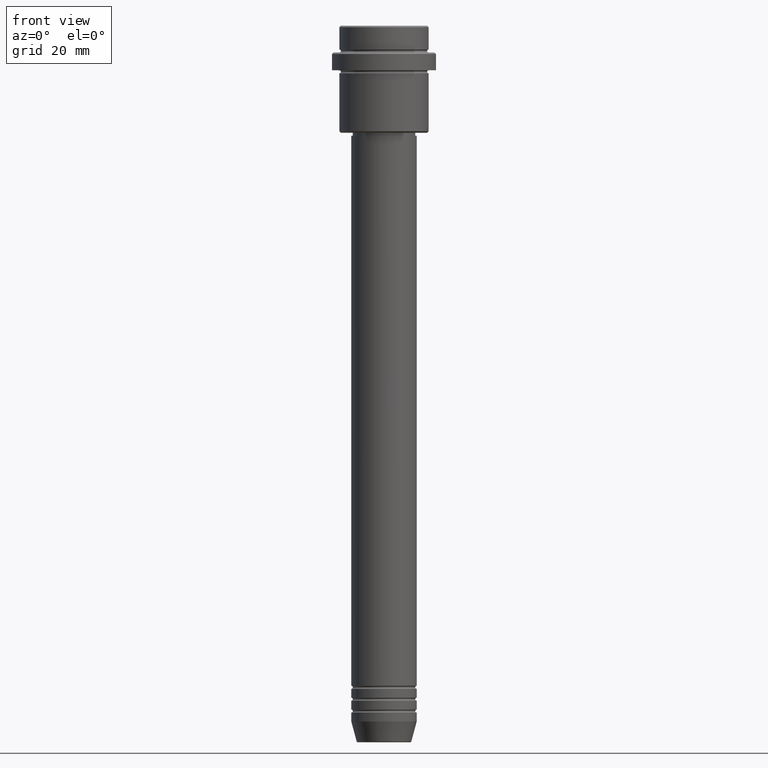
[diagram: clean part render]
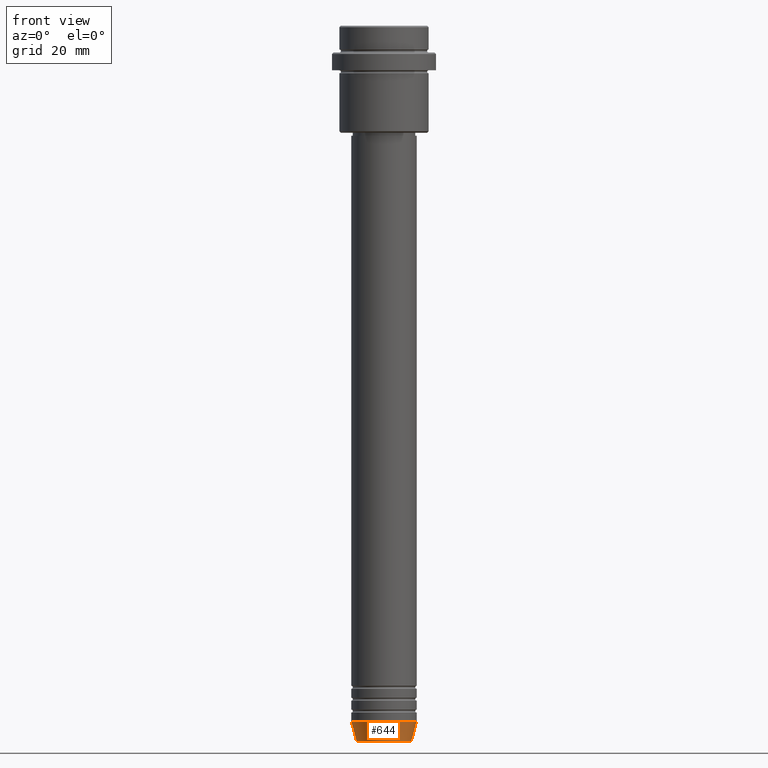
[diagram: same view with one face highlighted and labeled with its STEP entity id]
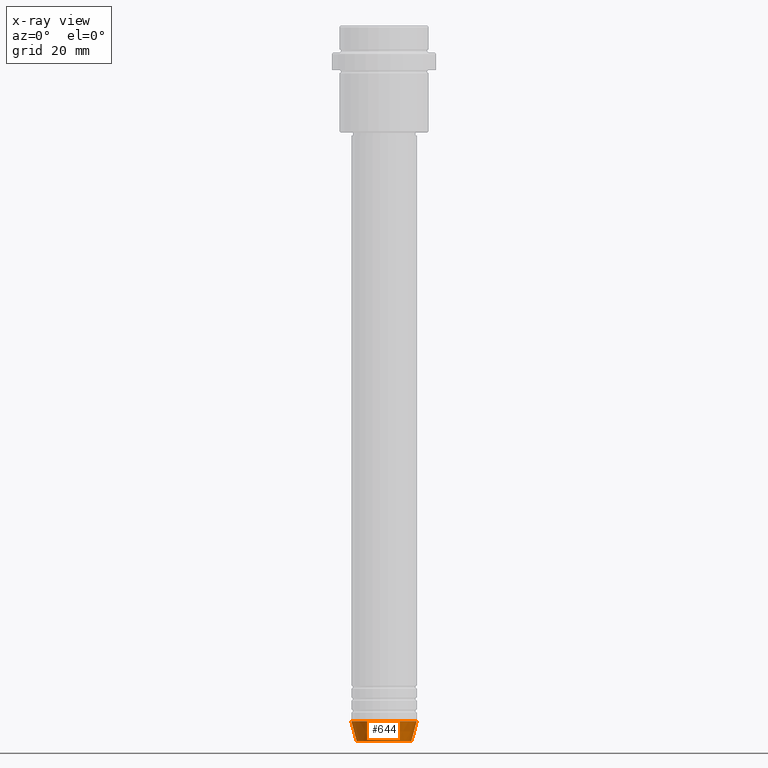
[diagram: x-ray of the same camera — body ghosted, the highlighted face saturated]
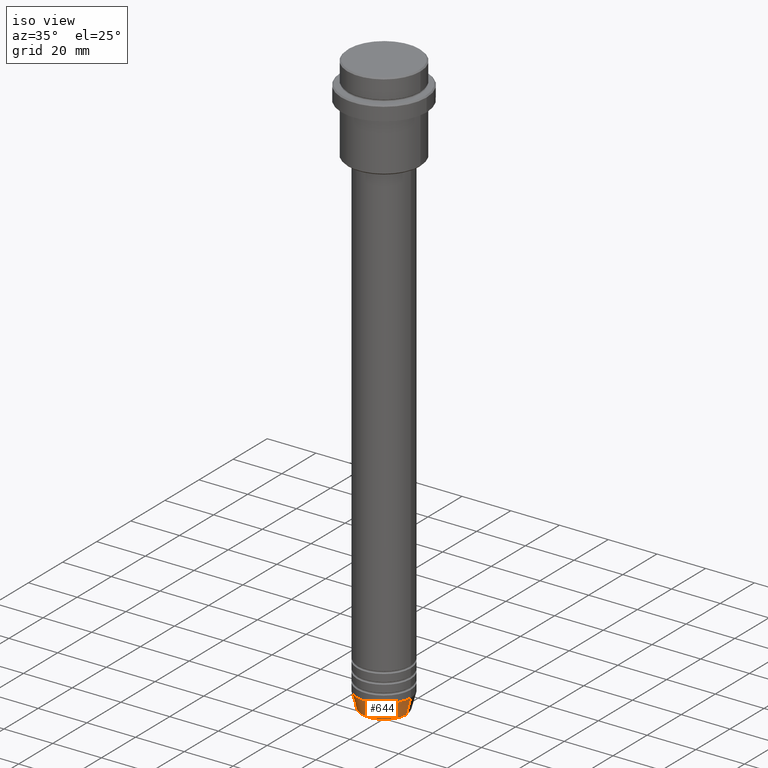
[diagram: same view with one face highlighted and labeled with its STEP entity id]
A machine part, front view. The second image highlights one B-rep face of the part: STEP entity #644.
The next image is the same camera in x-ray: the body ghosted, the highlighted face saturated — about 0% of this face is hidden behind the body in this view.
A second angle (iso view) of the same face is appended — the face is thin or edge-on in the first view.
In plain terms, the highlighted conical surface has half-angle 15 deg.
Its self-contained STEP definition (entity closure, byte-faithful):
#12 = CARTESIAN_POINT ( 'NONE',  ( -9.223655072137189492, 1.238341722557647202E-15, -240.6294095225512422 ) ) ;
#26 = CARTESIAN_POINT ( 'NONE',  ( -11.00000000000000000, 1.347111479062088405E-15, -234.0000000000000000 ) ) ;
#86 = CARTESIAN_POINT ( 'NONE',  ( 9.223655072137189492, 0.000000000000000000, -240.6294095225512422 ) ) ;
#95 = ORIENTED_EDGE ( 'NONE', *, *, #312, .F. ) ;
#158 = ORIENTED_EDGE ( 'NONE', *, *, #643, .T. ) ;
#235 = CONICAL_SURFACE ( 'NONE', #882, 11.00000000000000000, 0.2617993877991500740 ) ;
#249 = EDGE_LOOP ( 'NONE', ( #95, #158, #340, #761 ) ) ;
#297 = DIRECTION ( 'NONE',  ( 1.000000000000000000, 0.000000000000000000, 0.000000000000000000 ) ) ;
#312 = EDGE_CURVE ( 'NONE', #407, #1354, #896, .T. ) ;
#327 = EDGE_CURVE ( 'NONE', #660, #976, #760, .T. ) ;
#340 = ORIENTED_EDGE ( 'NONE', *, *, #327, .T. ) ;
#353 = AXIS2_PLACEMENT_3D ( 'NONE', #827, #1258, #297 ) ;
#383 = DIRECTION ( 'NONE',  ( -0.000000000000000000, -0.000000000000000000, 1.000000000000000000 ) ) ;
#407 = VERTEX_POINT ( 'NONE', #12 ) ;
#617 = CARTESIAN_POINT ( 'NONE',  ( 0.000000000000000000, 0.000000000000000000, -234.0000000000000000 ) ) ;
#643 = EDGE_CURVE ( 'NONE', #407, #660, #794, .T. ) ;
#644 = ADVANCED_FACE ( 'NONE', ( #853 ), #235, .T. ) ;
#660 = VERTEX_POINT ( 'NONE', #86 ) ;
#698 = AXIS2_PLACEMENT_3D ( 'NONE', #617, #383, #826 ) ;
#732 = CARTESIAN_POINT ( 'NONE',  ( 0.000000000000000000, 0.000000000000000000, -234.0000000000000000 ) ) ;
#760 = LINE ( 'NONE', #1292, #1063 ) ;
#761 = ORIENTED_EDGE ( 'NONE', *, *, #1066, .F. ) ;
#787 = CARTESIAN_POINT ( 'NONE',  ( -11.00000000000000000, 1.347111479062088405E-15, -234.0000000000000000 ) ) ;
#794 = CIRCLE ( 'NONE', #353, 9.223655072137189492 ) ;
#826 = DIRECTION ( 'NONE',  ( 1.000000000000000000, 0.000000000000000000, 0.000000000000000000 ) ) ;
#827 = CARTESIAN_POINT ( 'NONE',  ( 0.000000000000000000, 0.000000000000000000, -240.6294095225512422 ) ) ;
#853 = FACE_OUTER_BOUND ( 'NONE', #249, .T. ) ;
#863 = CIRCLE ( 'NONE', #698, 11.00000000000000000 ) ;
#882 = AXIS2_PLACEMENT_3D ( 'NONE', #732, #1179, #1375 ) ;
#896 = LINE ( 'NONE', #787, #1157 ) ;
#976 = VERTEX_POINT ( 'NONE', #1131 ) ;
#1011 = DIRECTION ( 'NONE',  ( 0.2588190451025213501, 0.000000000000000000, 0.9659258262890680902 ) ) ;
#1063 = VECTOR ( 'NONE', #1011, 1000.000000000000000 ) ;
#1066 = EDGE_CURVE ( 'NONE', #1354, #976, #863, .T. ) ;
#1131 = CARTESIAN_POINT ( 'NONE',  ( 11.00000000000000000, 0.000000000000000000, -234.0000000000000000 ) ) ;
#1157 = VECTOR ( 'NONE', #1323, 1000.000000000000000 ) ;
#1179 = DIRECTION ( 'NONE',  ( -0.000000000000000000, -0.000000000000000000, 1.000000000000000000 ) ) ;
#1258 = DIRECTION ( 'NONE',  ( -0.000000000000000000, -0.000000000000000000, 1.000000000000000000 ) ) ;
#1292 = CARTESIAN_POINT ( 'NONE',  ( 11.00000000000000000, 0.000000000000000000, -234.0000000000000000 ) ) ;
#1323 = DIRECTION ( 'NONE',  ( -0.2588190451025213501, 3.169619151431772337E-17, 0.9659258262890680902 ) ) ;
#1354 = VERTEX_POINT ( 'NONE', #26 ) ;
#1375 = DIRECTION ( 'NONE',  ( 1.000000000000000000, 0.000000000000000000, 0.000000000000000000 ) ) ;